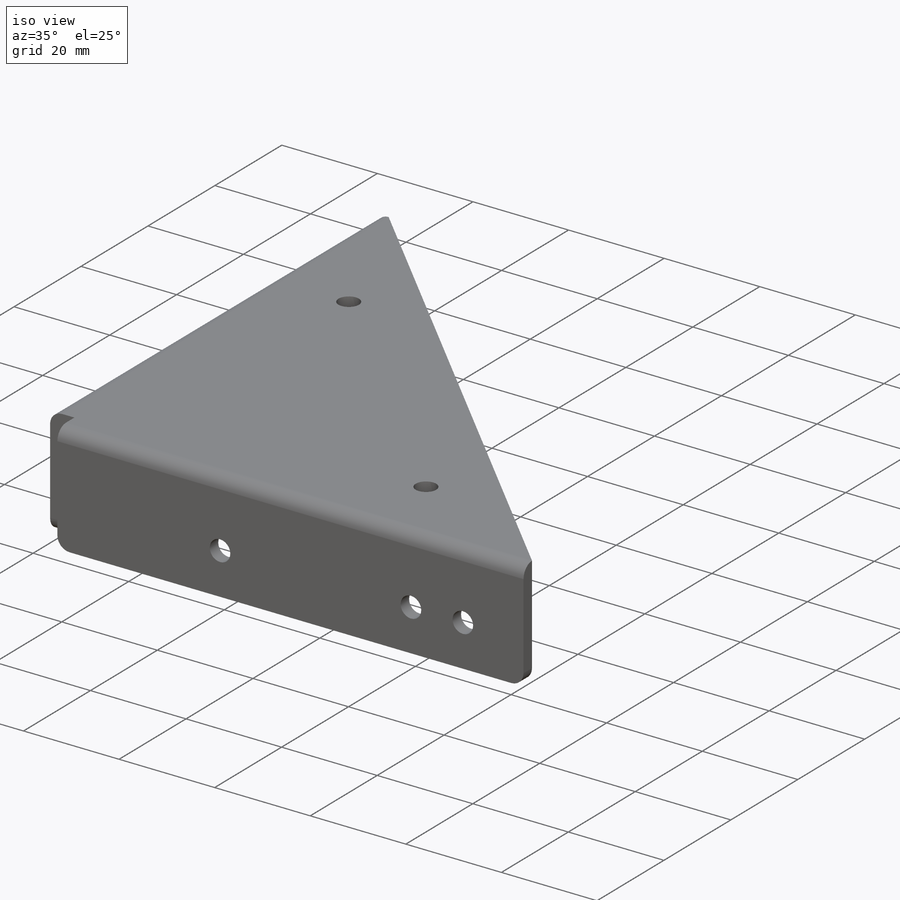
[diagram: iso view]
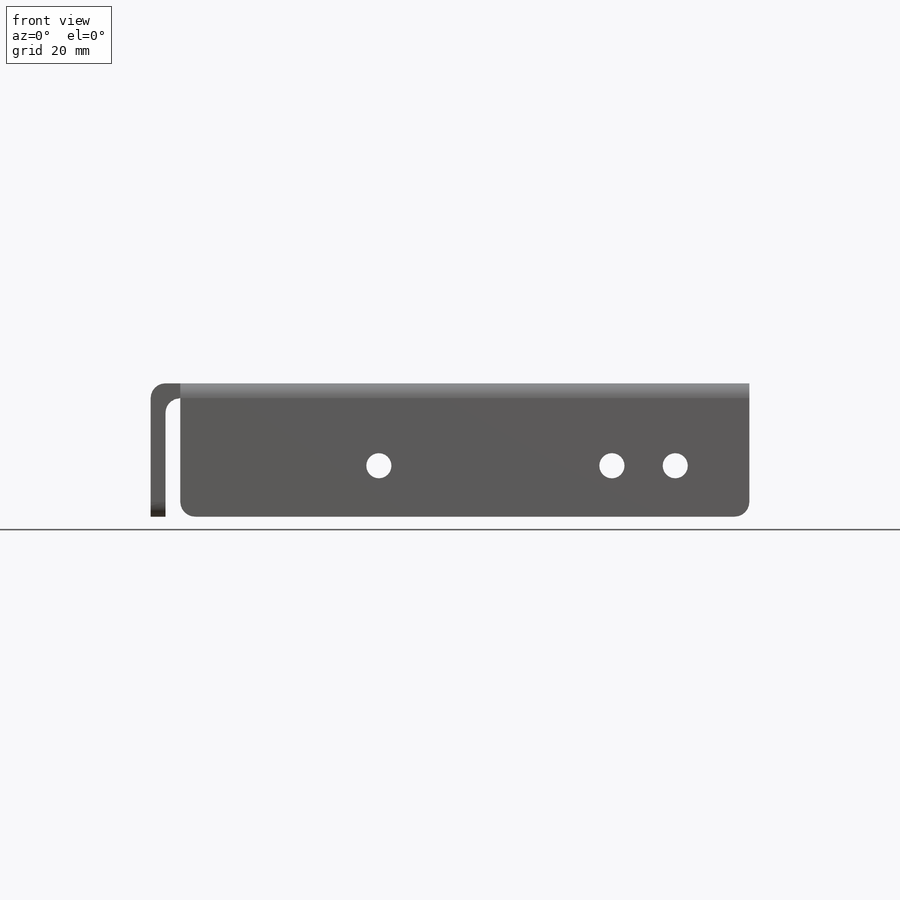
[diagram: front view]
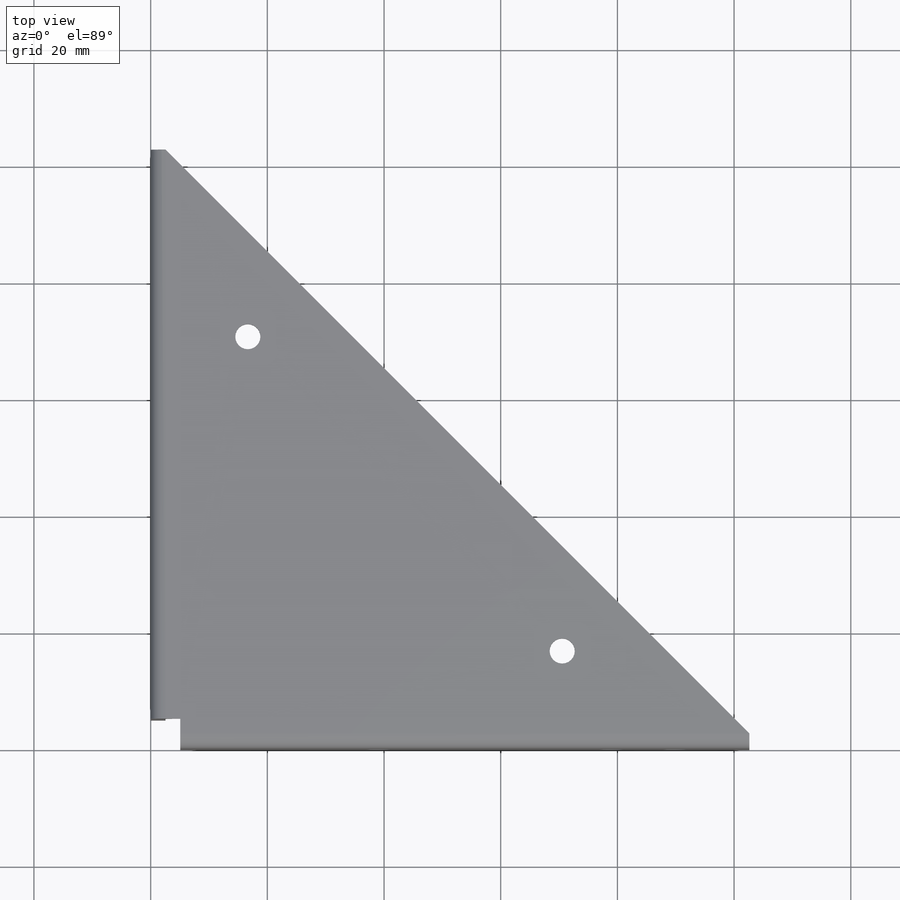
[diagram: top view]
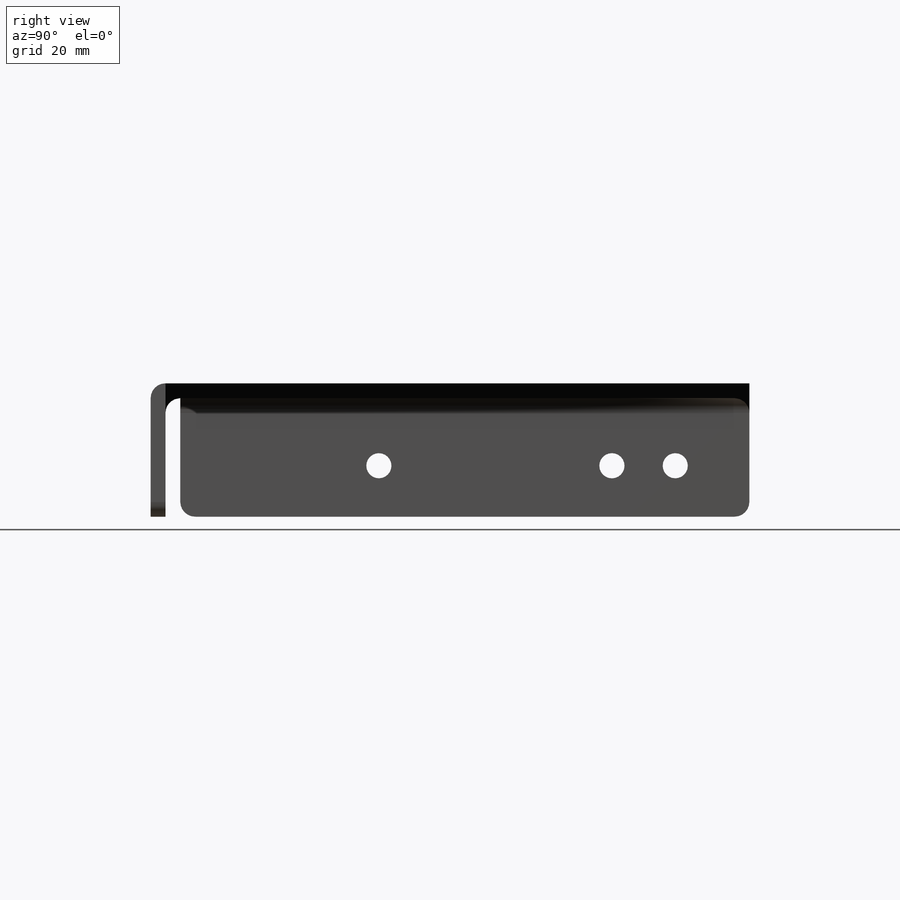
[diagram: right view]
SOLIDWORKS PART (.sldprt)
format: sldprt  version: not decoded by parser v0  size: 345,600 bytes
history: native  units: mm
features: sketch x11, cut_extrude x3, hole x3, extrude x2, fillet x2, material x1 (+12 scaffold rows collapsed)
feature tree (34):
  scaffold x12  (default folders/planes/origin — collapsed)
  material  "Material <not specified>"
  sketch  "Sketch1"  dims[D1=102.616mm D2=102.616mm D3=2.54mm D4=2.54mm]
  extrude  "Boss-Extrude3"  Depth=22.86mm
  sketch  "Sketch3"
  extrude  "Boss-Extrude4"  Depth=2.54mm
  fillet  "Fillet1"  Radius=2.54mm
  sketch  "Sketch4"
  cut_extrude  "Cut-Extrude1"  Depth=2.54mm
  hole  "#8 Clearance Hole1"  Diameter=4.3053mm Depth=74.422mm
  sketch  "Sketch6"  dims[D1=12.7mm D2=~8.73125mm D3=50.8mm]
  sketch  "Sketch5"  dims[hole-wizard template sketch: 50 standard entries collapsed; hole parameters above]
  hole  "#8 Clearance Hole2"  Diameter=4.3053mm Depth=74.422mm
  sketch  "Sketch8"  dims[D1=~8.73125mm D2=12.7mm D3=50.8mm]
  sketch  "Sketch7"  dims[hole-wizard template sketch: 50 standard entries collapsed; hole parameters above]
  hole  "#8 Clearance Hole3"  Diameter=4.3053mm Depth=74.422mm
  sketch  "Sketch10"  dims[c1.D1=31.75mm c1.D2=31.75mm c1.D3=12.7mm c1.D4=12.7mm c2.D1=76.2mm c2.D2=~8.333665mm c3.D2=90.0deg]
  sketch  "Sketch9"  dims[hole-wizard template sketch: 50 standard entries collapsed; hole parameters above]
  fillet  "Fillet2"  Radius=2.54mm
  sketch  "Sketch11"  dims[D2=4.318mm D1=10.8585mm]
  cut_extrude  "Cut-Extrude2"  Depth=7.62mm
  sketch  "Sketch12"  dims[D2=4.318mm D1=10.8585mm]
  cut_extrude  "Cut-Extrude3"  Depth=7.62mm
decode coverage: 19 of 21 modeling features carry decoded parameters
note: ~ marks probable driven/reference dimensions
note: suppression state not decoded; provenance and decode notes live in map.json
